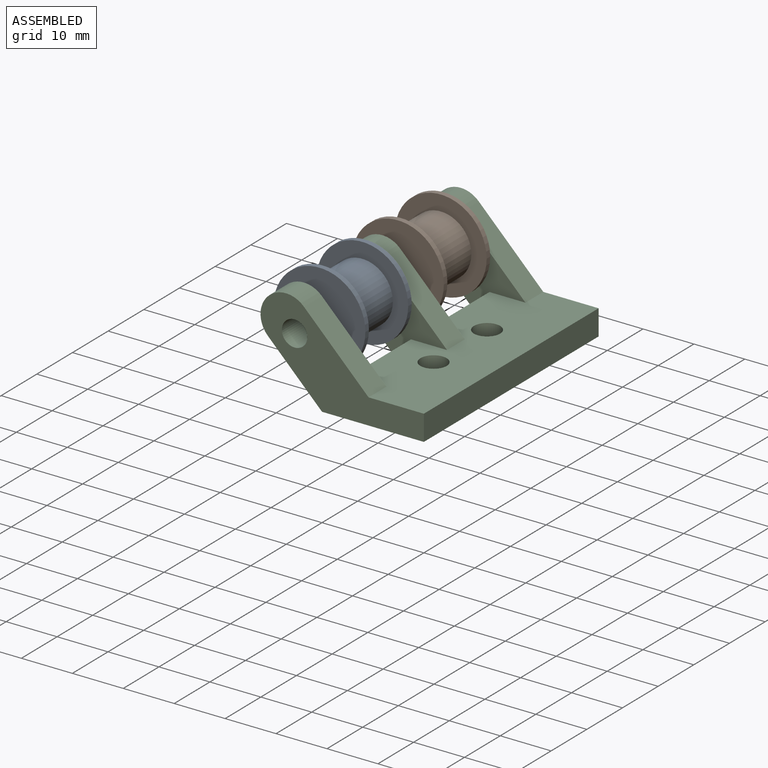
[diagram: assembled view]
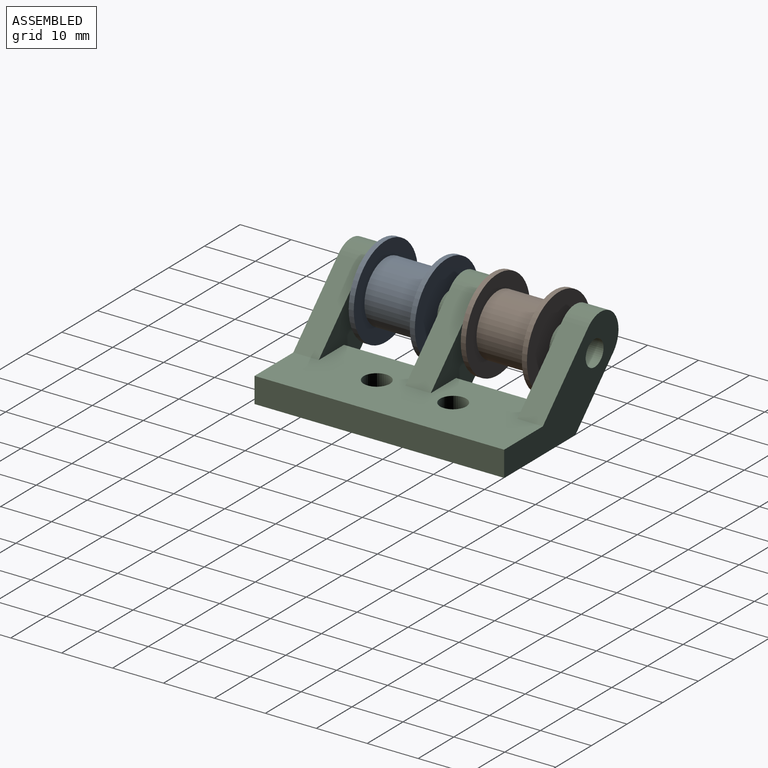
[diagram: assembled view, second angle]
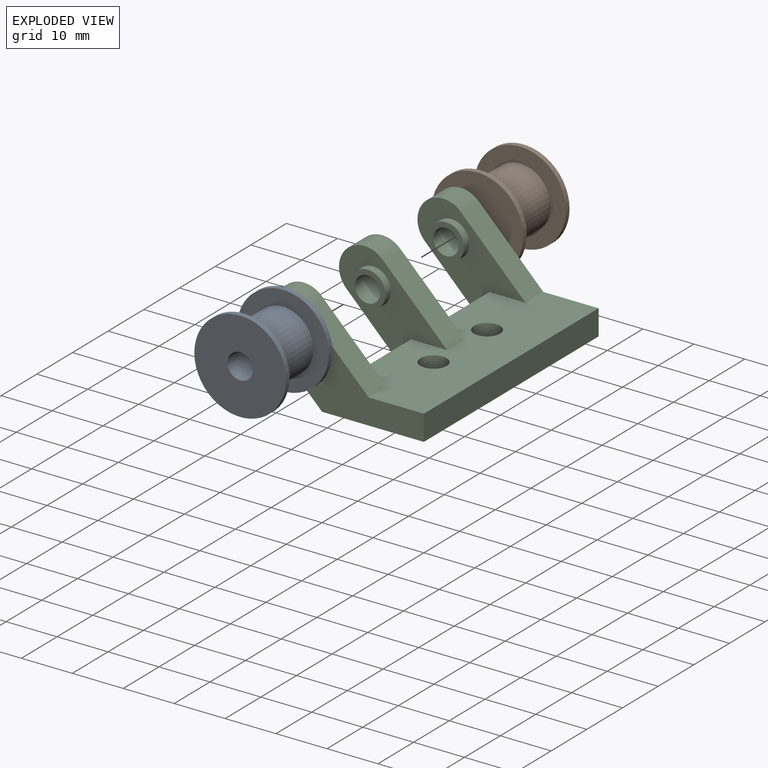
[diagram: exploded view]
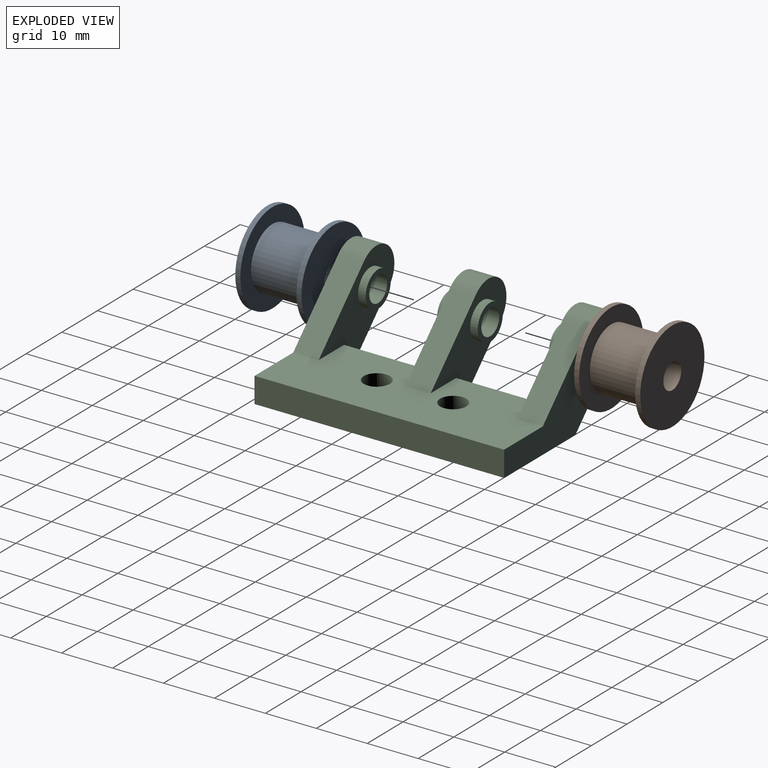
[diagram: exploded view, second angle]
ASSEMBLY  parts=3 mates=2
PART A: 8 faces, bbox 18x18x13 mm
  f0: cylinder r=9mm len=18mm, axis (0,0,-1), area 56.5mm2, adj f1,f2
  f1: plane 18x18mm, normal (0,0,1), area 141.4mm2, adj f0,f3
  f2: plane 18x18mm, normal (0,0,-1), area 234.8mm2, adj f0,f7
  f3: cylinder r=6mm len=12mm, axis (0,0,-1), area 414.7mm2, adj f1,f6
  f4: cylinder r=9mm len=18mm, axis (0,0,-1), area 56.5mm2, adj f5,f6
  f5: plane 18x18mm, normal (0,0,1), area 234.8mm2, adj f4,f7
  f6: plane 18x18mm, normal (0,0,-1), area 141.4mm2, adj f3,f4
  f7: cylinder r=2.5mm len=13mm, axis (0,0,1), area 204.2mm2, adj f2,f5
PART B: same geometry as A
PART C: 31 faces, bbox 32.1x49x19.1 mm
  f0: plane 49x17.93mm, normal (0,0,1), area 730.8mm2, adj f2,f3,f4,f6,f7,f8,f9,f10
  f1: plane 49x10.61mm, normal (-0.71,0,-0.71), area 295.4mm2, adj f2,f3,f5,f8,f9,f10,f11,f12
  f2: plane 32.07x19.14mm, normal (0,1,0), area 261.4mm2, adj f0,f1,f4,f5,f15,f19,f21
  f3: plane 32.07x19.14mm, normal (0,-1,0), area 261.4mm2, adj f0,f1,f4,f5,f14,f17,f22
  f4: plane 49x5mm, normal (1,0,0), area 245mm2, adj f0,f2,f3,f5
  f5: plane 49x20mm, normal (0,0,-1), area 938.3mm2, adj f1,f2,f3,f4,f6,f7
  f6: cylinder r=2.58mm len=5.15mm, axis (0,0,1), area 80.9mm2, adj f0,f5
  f7: cylinder r=2.58mm len=5.15mm, axis (0,0,1), area 80.9mm2, adj f0,f5
  f8: plane 21.21x17.68mm, normal (0,1,0), area 142.6mm2, adj f0,f1,f9,f16,f20,f27
  f9: plane 17x3.54mm, normal (-0.71,0,0.71), area 85mm2, adj f0,f1,f8,f10
  f10: plane 21.21x17.68mm, normal (0,-1,0), area 142.6mm2, adj f0,f1,f9,f15,f21,f29
  f11: plane 21.21x17.68mm, normal (0,-1,0), area 142.6mm2, adj f0,f1,f13,f16,f20,f25
  f12: plane 21.21x17.68mm, normal (0,1,0), area 142.6mm2, adj f0,f1,f13,f14,f22,f23
  f13: plane 17x3.54mm, normal (-0.71,0,0.71), area 85mm2, adj f0,f1,f11,f12
  f14: plane 12.68x12.68mm, normal (0.71,0,0.71), area 89.6mm2, adj f0,f3,f12,f22
  f15: plane 12.68x12.68mm, normal (0.71,0,0.71), area 89.6mm2, adj f0,f2,f10,f21
  f16: plane 12.68x12.68mm, normal (0.71,0,0.71), area 89.6mm2, adj f0,f8,f11,f20
  f17: cylinder r=2.5mm len=6.5mm, axis (0,1,0), area 102.1mm2, adj f3,f24
  f18: cylinder r=2.5mm len=8mm, axis (0,1,0), area 125.7mm2, adj f26,f28
  f19: cylinder r=2.5mm len=6.5mm, axis (0,1,0), area 102.1mm2, adj f2,f30
  f20: cylinder r=5mm len=8.54mm, axis (0,-1,0), area 78.5mm2, adj f1,f8,f11,f16
  f21: cylinder r=5mm len=8.54mm, axis (0,-1,0), area 78.5mm2, adj f1,f2,f10,f15
  f22: cylinder r=5mm len=8.54mm, axis (0,-1,0), area 78.5mm2, adj f1,f3,f12,f14
  f23: cylinder r=3.5mm len=7mm, axis (0,-1,0), area 33mm2, adj f12,f24
  f24: plane 7x7mm, normal (0,1,0), area 18.8mm2, adj f17,f23
  f25: cylinder r=3.5mm len=7mm, axis (0,1,0), area 33mm2, adj f11,f26
  f26: plane 7x7mm, normal (0,-1,0), area 18.8mm2, adj f18,f25
  f27: cylinder r=3.5mm len=7mm, axis (0,-1,0), area 33mm2, adj f8,f28
  f28: plane 7x7mm, normal (0,1,0), area 18.8mm2, adj f18,f27
  f29: cylinder r=3.5mm len=7mm, axis (0,1,0), area 33mm2, adj f10,f30
  f30: plane 7x7mm, normal (0,-1,0), area 18.8mm2, adj f19,f29
PLACE A rot(axis=(-1,0,0),90deg) t=(-13.44,-15.77,9.02)mm
PLACE B rot(axis=(-1,0,0),90deg) t=(-13.44,6.23,9.02)mm
PLACE C t=(1.95,1.73,-3.44)mm
MATE fastened A.f4 <-> C.f23  axis (0,1,0) through (-13.44,-2.77,9.02)mm
MATE fastened B.f4 <-> C.f25  axis (0,1,0) through (-13.44,19.23,9.02)mm
